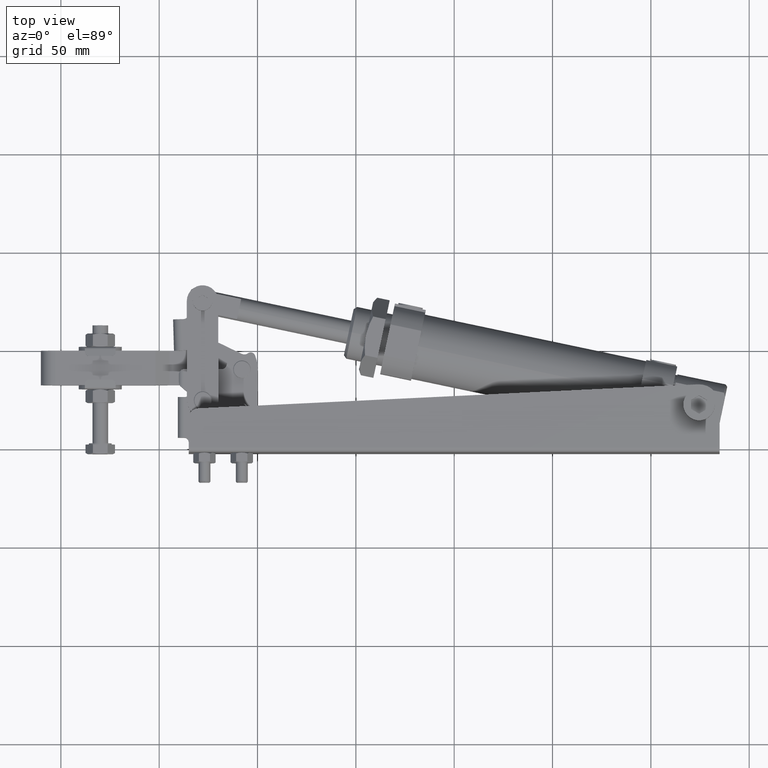
[diagram: clean part render]
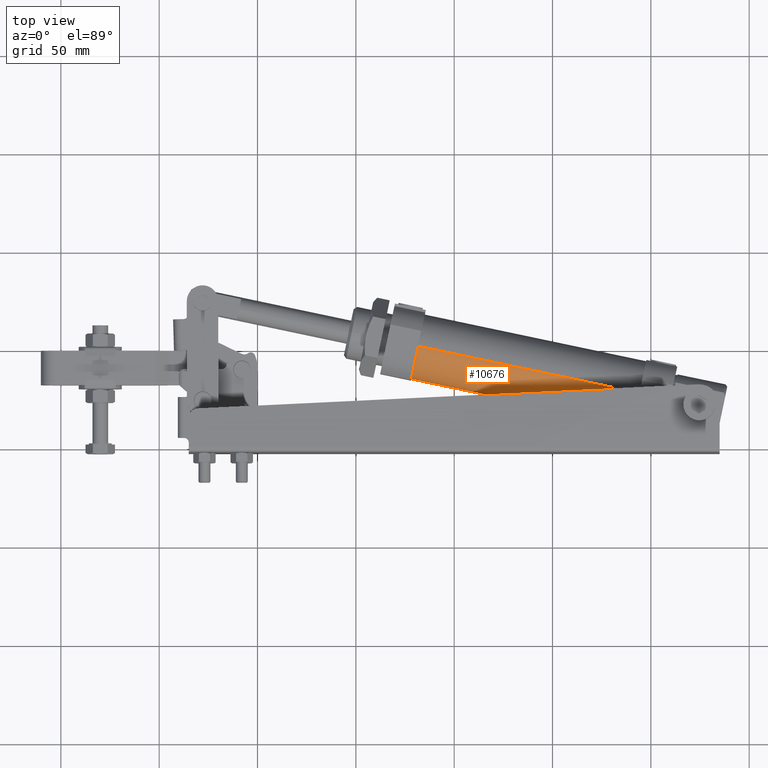
[diagram: same view with one face highlighted and labeled with its STEP entity id]
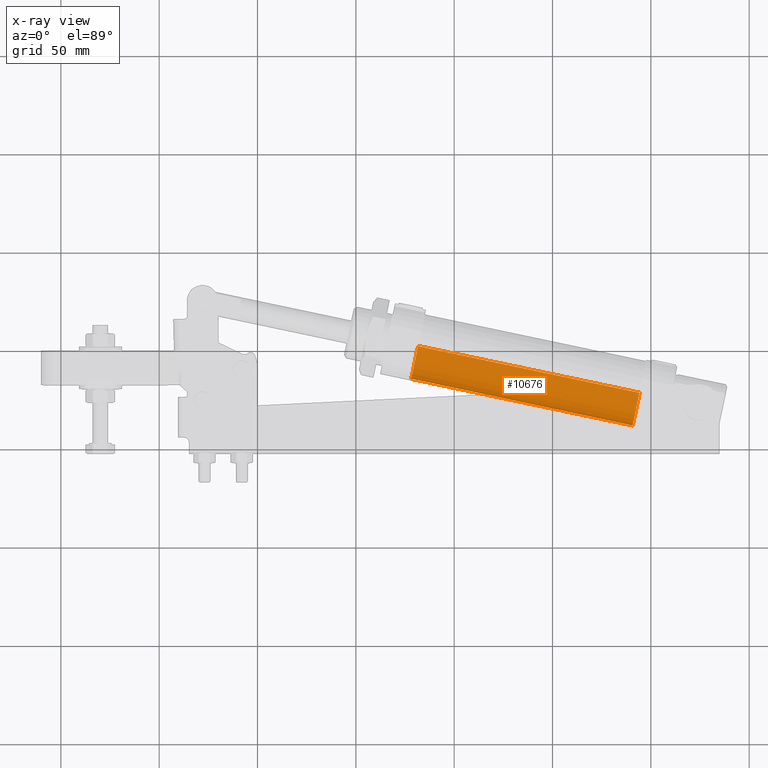
[diagram: x-ray of the same camera — body ghosted, the highlighted face saturated]
A machine part, top view. The second image highlights one B-rep face of the part: STEP entity #10676.
The next image is the same camera in x-ray: the body ghosted, the highlighted face saturated — about 0% of this face is hidden behind the body in this view.
In plain terms, the highlighted cylindrical surface (edge-blend (fillet) strip) has radius 16.8 mm, axis along (0.9785, -0.2061, 0).
Its self-contained STEP definition (entity closure, byte-faithful):
#50 = CYLINDRICAL_SURFACE ( 'NONE', #23899, 16.80000000000003300 ) ;
#204 = ORIENTED_EDGE ( 'NONE', *, *, #346, .T. ) ;
#346 = EDGE_CURVE ( 'NONE', #23294, #22033, #7137, .T. ) ;
#1589 = CARTESIAN_POINT ( 'NONE',  ( 35.13753947769568200, 61.38622128117862100, 16.80000000000153500 ) ) ;
#1888 = VERTEX_POINT ( 'NONE', #5968 ) ;
#2450 = FACE_OUTER_BOUND ( 'NONE', #23674, .T. ) ;
#2802 = DIRECTION ( 'NONE',  ( 0.9785284868390311500, -0.2061116213232917500, 1.583905819668312900E-016 ) ) ;
#5946 = CARTESIAN_POINT ( 'NONE',  ( 194.1656169079919000, 27.88946026099968400, 16.80000000000156000 ) ) ;
#5968 = CARTESIAN_POINT ( 'NONE',  ( 81.63484092150341100, 51.59229671317822200, 16.80000000000154300 ) ) ;
#6161 = EDGE_CURVE ( 'NONE', #15541, #22033, #17192, .T. ) ;
#7137 = LINE ( 'NONE', #14247, #21795 ) ;
#8753 = CARTESIAN_POINT ( 'NONE',  ( 81.63484092150341100, 51.59229671317819300, 1.509132465837120300E-012 ) ) ;
#9216 = LINE ( 'NONE', #1589, #13680 ) ;
#10672 = DIRECTION ( 'NONE',  ( 0.0000000000000000000, 4.130293990420961000E-016, 1.000000000000000000 ) ) ;
#10676 = ADVANCED_FACE ( 'NONE', ( #2450 ), #50, .T. ) ;
#10795 = CARTESIAN_POINT ( 'NONE',  ( 35.13753947769568200, 61.38622128117861400, 1.501179905704235900E-012 ) ) ;
#11023 = CARTESIAN_POINT ( 'NONE',  ( 194.1656169079918800, 27.88946026099969800, 1.527329335157306300E-012 ) ) ;
#12930 = DIRECTION ( 'NONE',  ( 0.0000000000000000000, 6.195440985631441500E-016, 1.000000000000000000 ) ) ;
#13680 = VECTOR ( 'NONE', #22665, 1000.000000000000000 ) ;
#13929 = ORIENTED_EDGE ( 'NONE', *, *, #6161, .F. ) ;
#14129 = ORIENTED_EDGE ( 'NONE', *, *, #17025, .F. ) ;
#14247 = CARTESIAN_POINT ( 'NONE',  ( 35.13753947769568200, 61.38622128117859900, -16.79999999999853000 ) ) ;
#14251 = EDGE_CURVE ( 'NONE', #23294, #1888, #15482, .T. ) ;
#15482 = CIRCLE ( 'NONE', #17378, 16.80000000000003300 ) ;
#15541 = VERTEX_POINT ( 'NONE', #5946 ) ;
#16223 = AXIS2_PLACEMENT_3D ( 'NONE', #11023, #24409, #12930 ) ;
#17025 = EDGE_CURVE ( 'NONE', #1888, #15541, #9216, .T. ) ;
#17192 = CIRCLE ( 'NONE', #16223, 16.80000000000003300 ) ;
#17378 = AXIS2_PLACEMENT_3D ( 'NONE', #8753, #22127, #10672 ) ;
#18459 = CARTESIAN_POINT ( 'NONE',  ( 81.63484092150341100, 51.59229671317819300, -16.79999999999852300 ) ) ;
#20321 = DIRECTION ( 'NONE',  ( 0.9785284868390311500, -0.2061116213232917500, 1.583905819668312900E-016 ) ) ;
#21133 = CARTESIAN_POINT ( 'NONE',  ( 194.1656169079918800, 27.88946026099967000, -16.79999999999850900 ) ) ;
#21795 = VECTOR ( 'NONE', #2802, 1000.000000000000000 ) ;
#22033 = VERTEX_POINT ( 'NONE', #21133 ) ;
#22127 = DIRECTION ( 'NONE',  ( -0.9785284868390311500, 0.2061116213232917500, -1.583905819668312900E-016 ) ) ;
#22665 = DIRECTION ( 'NONE',  ( 0.9785284868390311500, -0.2061116213232917500, 1.583905819668312900E-016 ) ) ;
#22716 = ORIENTED_EDGE ( 'NONE', *, *, #14251, .F. ) ;
#23294 = VERTEX_POINT ( 'NONE', #18459 ) ;
#23674 = EDGE_LOOP ( 'NONE', ( #22716, #204, #13929, #14129 ) ) ;
#23899 = AXIS2_PLACEMENT_3D ( 'NONE', #10795, #20321, #24260 ) ;
#24260 = DIRECTION ( 'NONE',  ( 0.0000000000000000000, 4.130293990420961000E-016, 1.000000000000000000 ) ) ;
#24409 = DIRECTION ( 'NONE',  ( 0.9785284868390311500, -0.2061116213232917500, 1.583905819668312900E-016 ) ) ;